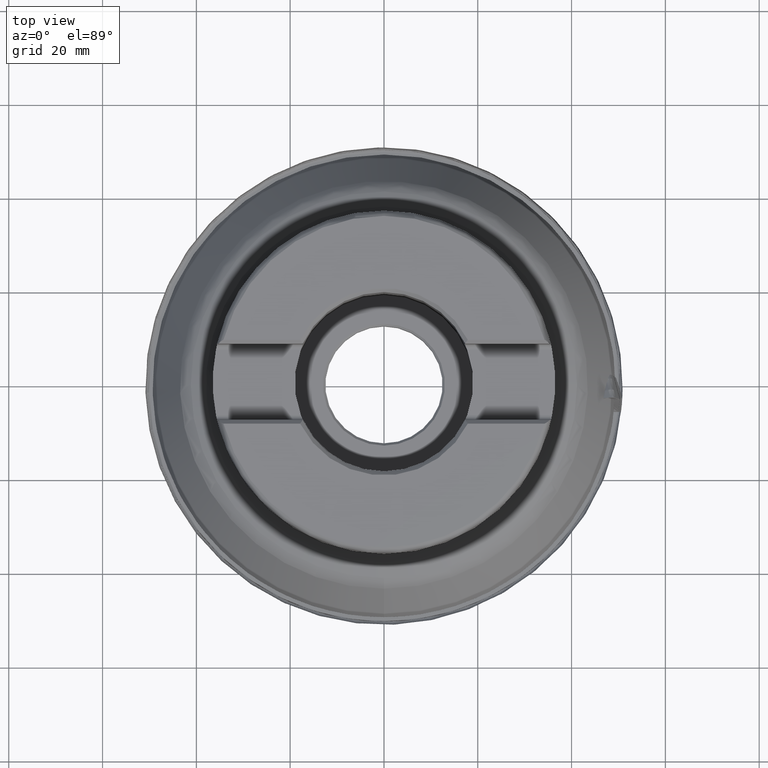
[diagram: clean part render]
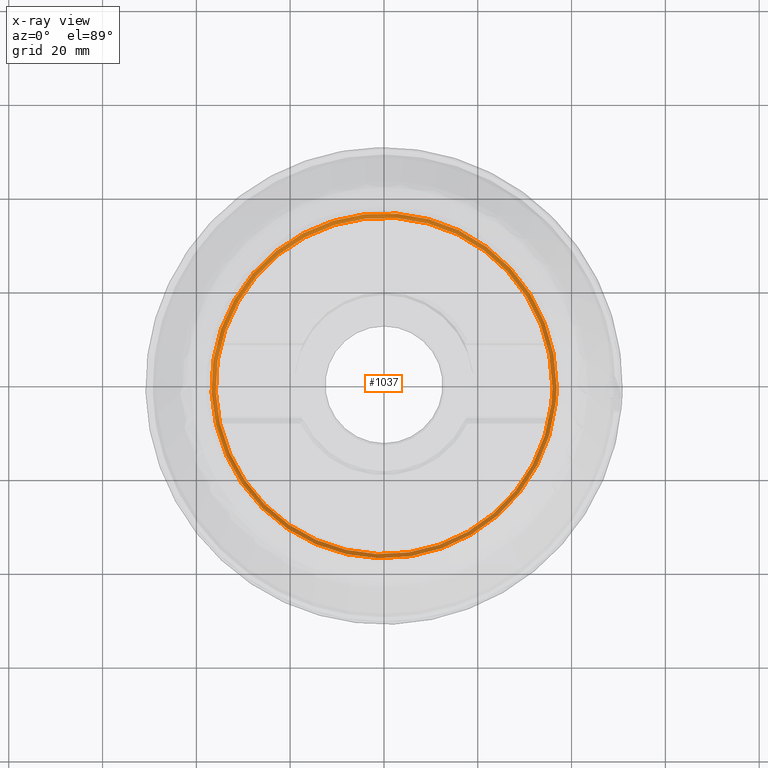
[diagram: x-ray — body ghosted, one internal face saturated and labeled with its STEP entity id]
A machine part, top view, then the same camera in x-ray: the body is ghosted and one INTERNAL B-rep face — a face not visible from any outside direction — is saturated and labeled: STEP entity #1037.
In plain terms, the highlighted face is a SurfaceOfRevolution surface.
Its self-contained STEP definition (entity closure, byte-faithful):
#127=SURFACE_OF_REVOLUTION('',#1720,#148);
#148=AXIS1_PLACEMENT('',#17951,#5328);
#550=FACE_BOUND('',#1681,.T.);
#551=FACE_BOUND('',#1682,.T.);
#725=CIRCLE('',#4815,35.8831423891769);
#726=CIRCLE('',#4816,36.7892926203194);
#1037=ADVANCED_FACE('',(#550,#551),#127,.F.);
#1681=EDGE_LOOP('',(#3053));
#1682=EDGE_LOOP('',(#3054));
#1720=LINE('',#17950,#1756);
#1756=VECTOR('',#5327,1.7926188664357);
#3053=ORIENTED_EDGE('',*,*,#4107,.T.);
#3054=ORIENTED_EDGE('',*,*,#4108,.F.);
#3457=VERTEX_POINT('',#17935);
#3458=VERTEX_POINT('',#17949);
#4107=EDGE_CURVE('',#3457,#3457,#725,.T.);
#4108=EDGE_CURVE('',#3458,#3458,#726,.T.);
#4815=AXIS2_PLACEMENT_3D('',#17934,#5322,#5323);
#4816=AXIS2_PLACEMENT_3D('',#17948,#5325,#5326);
#5322=DIRECTION('',(0.,0.,1.));
#5323=DIRECTION('',(1.,0.,0.));
#5325=DIRECTION('',(0.,0.,1.));
#5326=DIRECTION('',(1.,0.,0.));
#5327=DIRECTION('',(-0.524453379708591,-0.146358299859652,-0.838765700642574));
#5328=DIRECTION('',(0.,0.,1.));
#17934=CARTESIAN_POINT('',(0.,0.,7.54109558826857));
#17935=CARTESIAN_POINT('',(35.8831423891769,0.,7.54109558826857));
#17948=CARTESIAN_POINT('',(0.,0.,9.04468280775962));
#17949=CARTESIAN_POINT('',(36.7892926203194,0.,9.04468280775962));
#17950=CARTESIAN_POINT('',(36.5916885166369,-3.80793684360839,9.04468280775962));
#17951=CARTESIAN_POINT('',(0.,0.,0.));